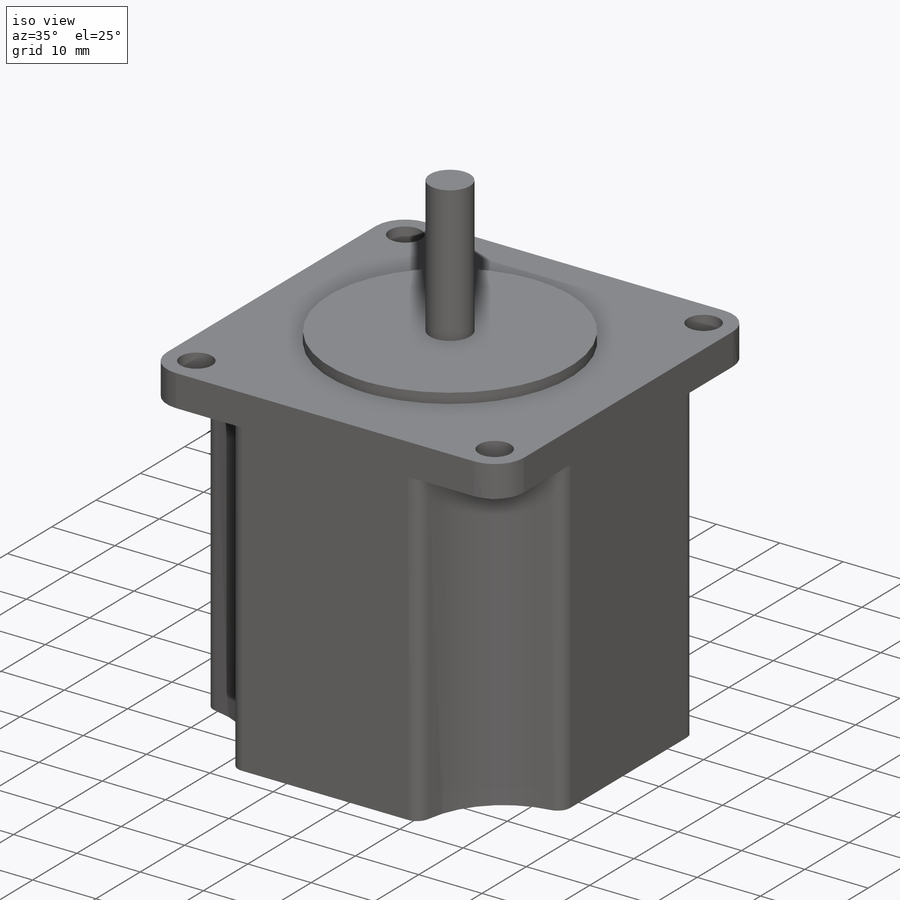
[diagram: iso view]
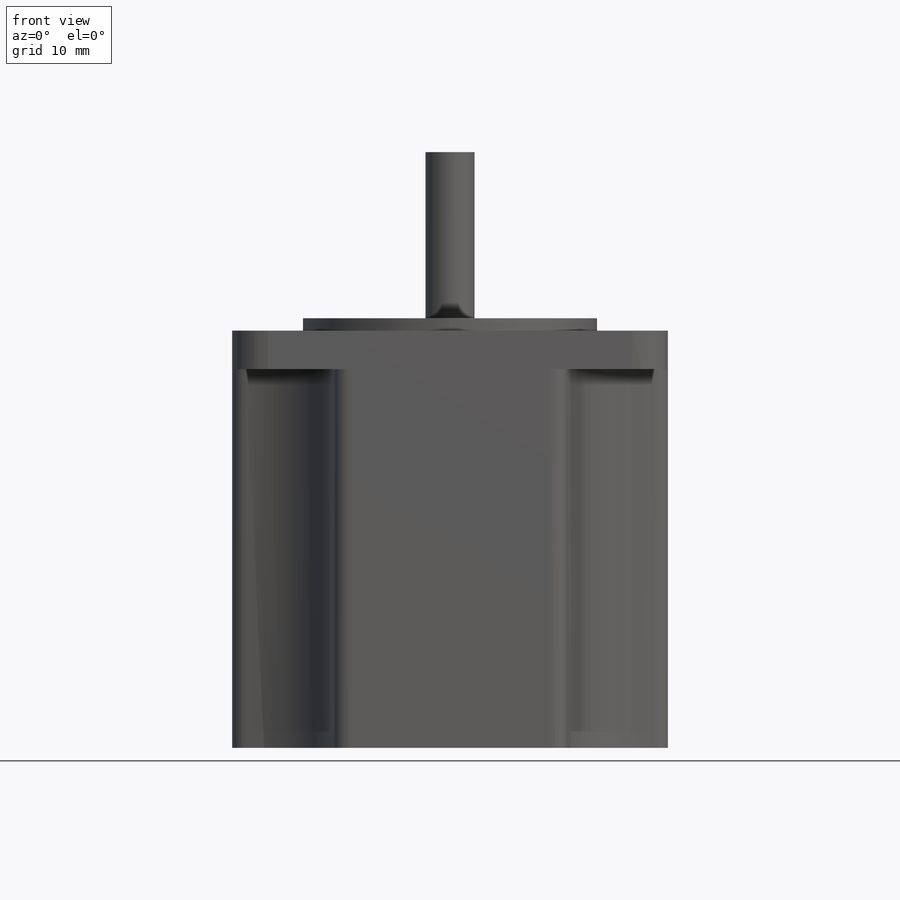
[diagram: front view]
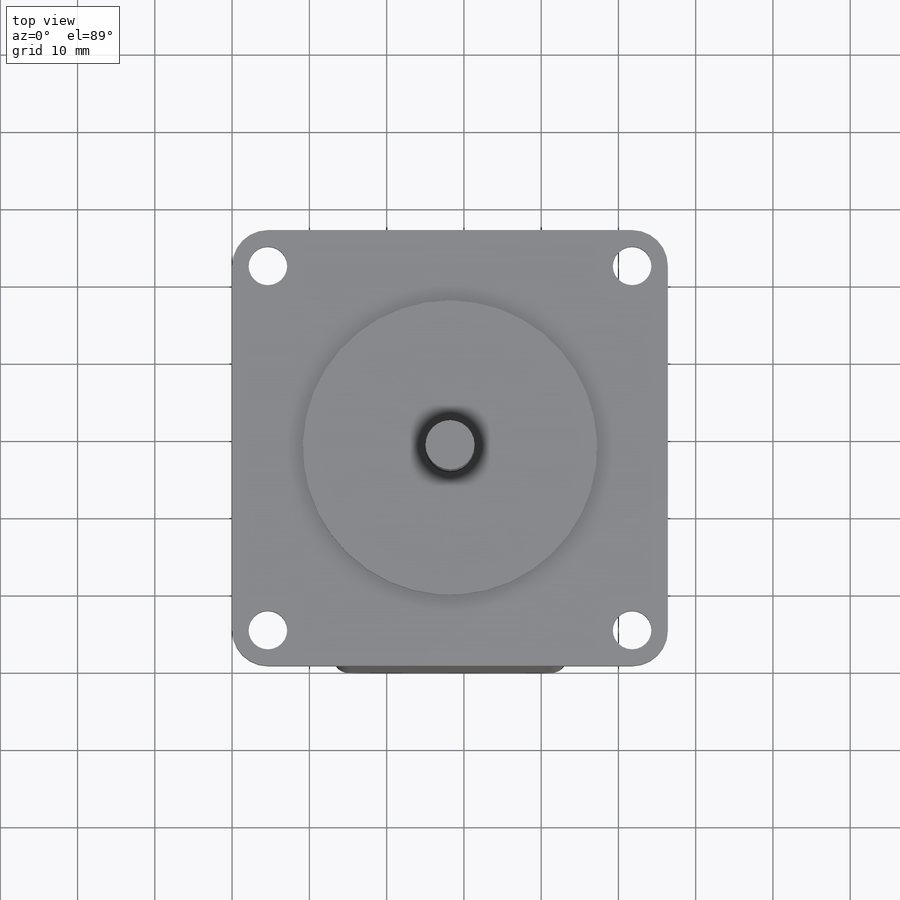
[diagram: top view]
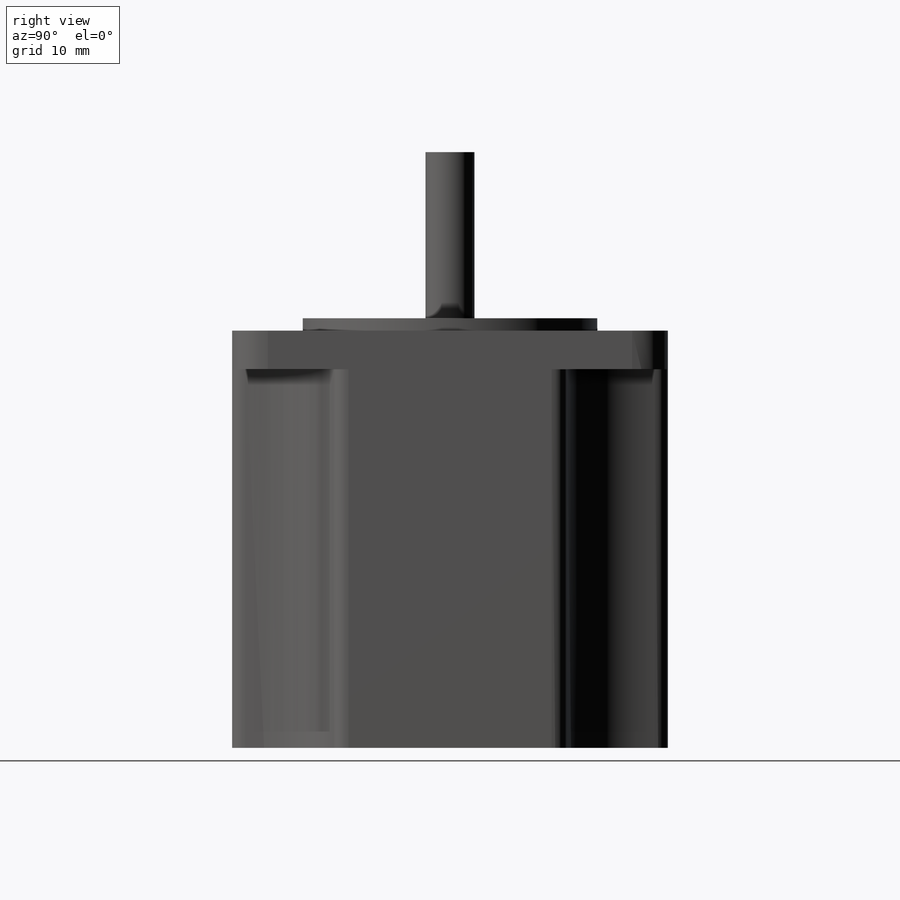
[diagram: right view]
SOLIDWORKS PART (.sldprt)
format: sldprt  version: not decoded by parser v0  size: 223,744 bytes
history: native  units: mm
features: sketch x5, extrude x3, cut_extrude x2, material x1 (+11 scaffold rows collapsed)
feature tree (22):
  scaffold x11  (default folders/planes/origin — collapsed)
  material  "Material <not specified>"
  sketch  "Sketch1"  dims[D5=5.0mm D1=56.4mm D2=56.4mm D3=23.57mm D4=23.57mm]
  extrude  "Boss-Extrude1"  Depth=54mm
  sketch  "Sketch2"  dims[D1=5.0mm]
  cut_extrude  "Cut-Extrude1"  Depth=54mm
  sketch  "Sketch3"  dims[D3=2.0mm D1=15.0mm D2=15.0mm]
  cut_extrude  "Cut-Extrude3"  Depth=49mm
  sketch  "Sketch4"  dims[D1=38.1mm]
  extrude  "Boss-Extrude2"  Depth=1.6mm
  sketch  "Sketch5"  dims[D1=6.35mm]
  extrude  "Boss-Extrude3"  Depth=21.5mm
decode coverage: 10 of 10 modeling features carry decoded parameters
note: suppression state not decoded; provenance and decode notes live in map.json
